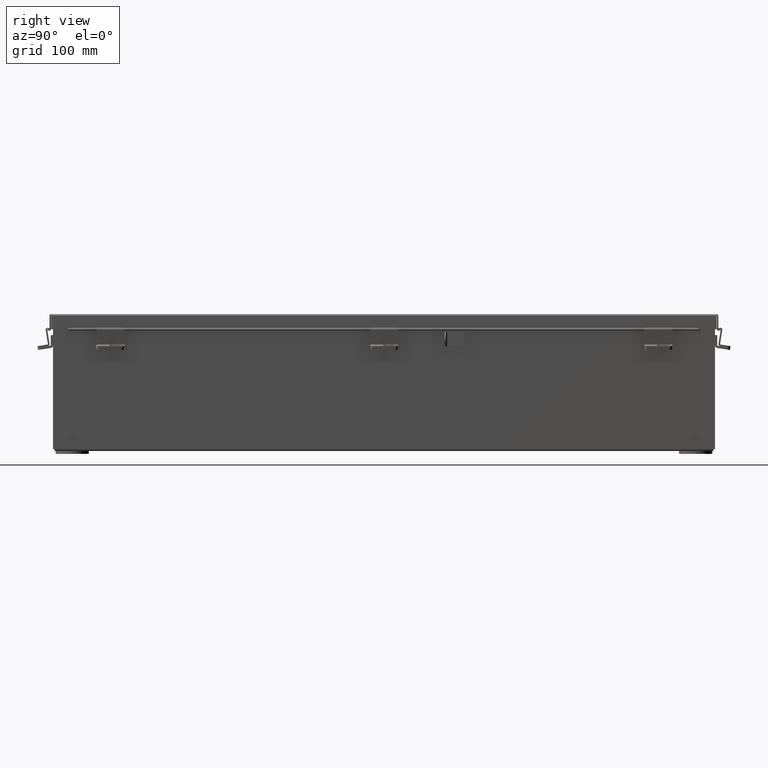
[diagram: clean part render]
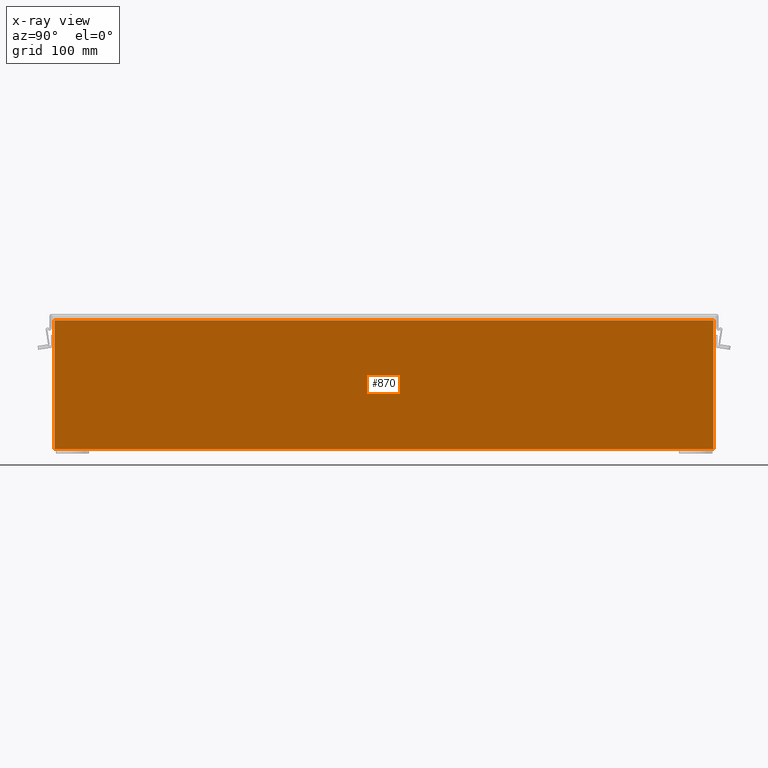
[diagram: x-ray — body ghosted, one internal face saturated and labeled with its STEP entity id]
A machine part, right view, then the same camera in x-ray: the body is ghosted and one INTERNAL B-rep face — a face not visible from any outside direction — is saturated and labeled: STEP entity #870.
In plain terms, the highlighted planar face has unit normal (-1, 0, 0).
Its self-contained STEP definition (entity closure, byte-faithful):
#91 = VERTEX_POINT ( 'NONE', #4195 ) ;
#384 = DIRECTION ( 'NONE',  ( -1.000000000000000000, 0.0000000000000000000, 3.455316574900958600E-015 ) ) ;
#705 = DIRECTION ( 'NONE',  ( -3.455316574900958600E-015, -0.0000000000000000000, -1.000000000000000000 ) ) ;
#870 = ADVANCED_FACE ( 'NONE', ( #7262 ), #10422, .T. ) ;
#3647 = AXIS2_PLACEMENT_3D ( 'NONE', #8395, #384, #14534 ) ;
#4195 = CARTESIAN_POINT ( 'NONE',  ( 2.925300000000018700, -14.92529999999999800, 5.837599999999999200 ) ) ;
#4889 = CARTESIAN_POINT ( 'NONE',  ( 2.925299999999998200, -14.92529999999999800, 0.01300000000000039000 ) ) ;
#5110 = DIRECTION ( 'NONE',  ( 3.455316574900958600E-015, -3.735477378271307500E-016, 1.000000000000000000 ) ) ;
#6263 = LINE ( 'NONE', #14375, #16436 ) ;
#7262 = FACE_OUTER_BOUND ( 'NONE', #14710, .T. ) ;
#8395 = CARTESIAN_POINT ( 'NONE',  ( 2.925299999999998200, 0.0000000000000000000, -1.036394832596379800E-014 ) ) ;
#8813 = EDGE_CURVE ( 'NONE', #23237, #24153, #9966, .T. ) ;
#9003 = CARTESIAN_POINT ( 'NONE',  ( 2.925300000000018700, 14.92530000000000000, 5.850600000000000000 ) ) ;
#9518 = LINE ( 'NONE', #14857, #14969 ) ;
#9966 = LINE ( 'NONE', #9003, #25501 ) ;
#10422 = PLANE ( 'NONE',  #3647 ) ;
#10851 = EDGE_CURVE ( 'NONE', #91, #23940, #9518, .T. ) ;
#11966 = ORIENTED_EDGE ( 'NONE', *, *, #12474, .F. ) ;
#12474 = EDGE_CURVE ( 'NONE', #23940, #23237, #23091, .T. ) ;
#12800 = DIRECTION ( 'NONE',  ( 6.324428756955009600E-032, 1.000000000000000000, 1.830347124455966700E-017 ) ) ;
#12930 = EDGE_CURVE ( 'NONE', #24153, #91, #6263, .T. ) ;
#13938 = CARTESIAN_POINT ( 'NONE',  ( 2.925299999999998200, 14.92529999999999800, 0.01300000000000039000 ) ) ;
#14375 = CARTESIAN_POINT ( 'NONE',  ( 2.925300000000018700, 14.92529999999999800, 5.837599999999999200 ) ) ;
#14534 = DIRECTION ( 'NONE',  ( 3.455316574900958600E-015, 0.0000000000000000000, 1.000000000000000000 ) ) ;
#14710 = EDGE_LOOP ( 'NONE', ( #16388, #24776, #22986, #11966 ) ) ;
#14857 = CARTESIAN_POINT ( 'NONE',  ( 2.925299999999998200, -14.92529999999999800, 0.0000000000000000000 ) ) ;
#14969 = VECTOR ( 'NONE', #705, 39.37007874015748100 ) ;
#16388 = ORIENTED_EDGE ( 'NONE', *, *, #10851, .F. ) ;
#16409 = DIRECTION ( 'NONE',  ( -0.0000000000000000000, -1.000000000000000000, -0.0000000000000000000 ) ) ;
#16436 = VECTOR ( 'NONE', #16409, 39.37007874015748100 ) ;
#17103 = VECTOR ( 'NONE', #12800, 39.37007874015748100 ) ;
#17968 = CARTESIAN_POINT ( 'NONE',  ( 2.925300000000018700, 14.92530000000000000, 5.837599999999999200 ) ) ;
#22873 = CARTESIAN_POINT ( 'NONE',  ( 2.925299999999998200, -14.92529999999999800, 0.01300000000000011600 ) ) ;
#22986 = ORIENTED_EDGE ( 'NONE', *, *, #8813, .F. ) ;
#23091 = LINE ( 'NONE', #22873, #17103 ) ;
#23237 = VERTEX_POINT ( 'NONE', #13938 ) ;
#23940 = VERTEX_POINT ( 'NONE', #4889 ) ;
#24153 = VERTEX_POINT ( 'NONE', #17968 ) ;
#24776 = ORIENTED_EDGE ( 'NONE', *, *, #12930, .F. ) ;
#25501 = VECTOR ( 'NONE', #5110, 39.37007874015748100 ) ;